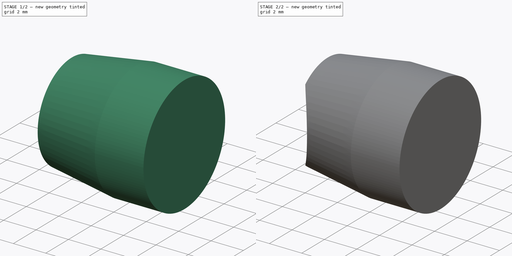
[diagram: build sequence overview — one tinted view per stage of 2, left to right]
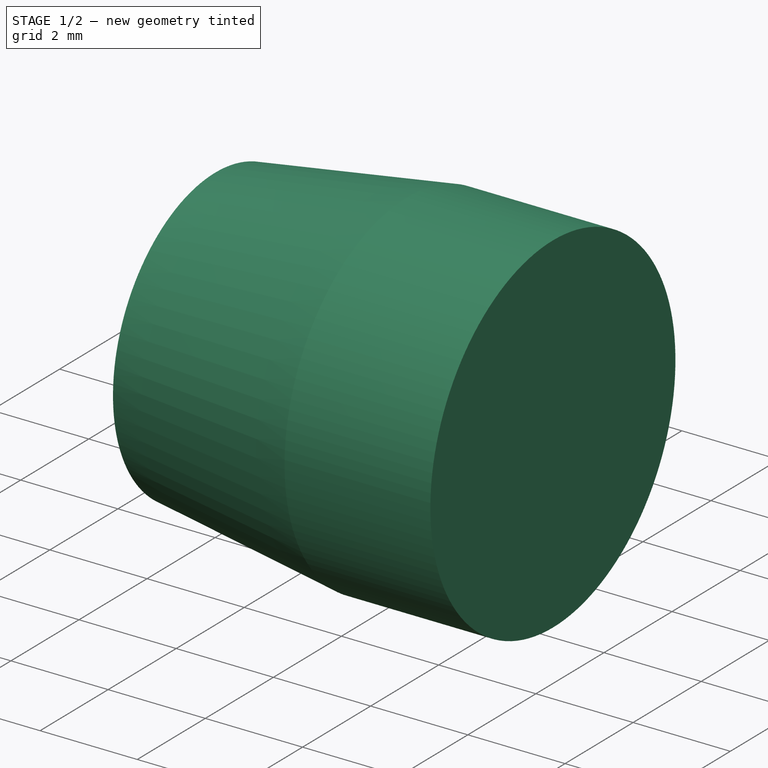
[diagram: stage 1 of 2 — iso view after this stage's code; geometry added in this stage tinted green]
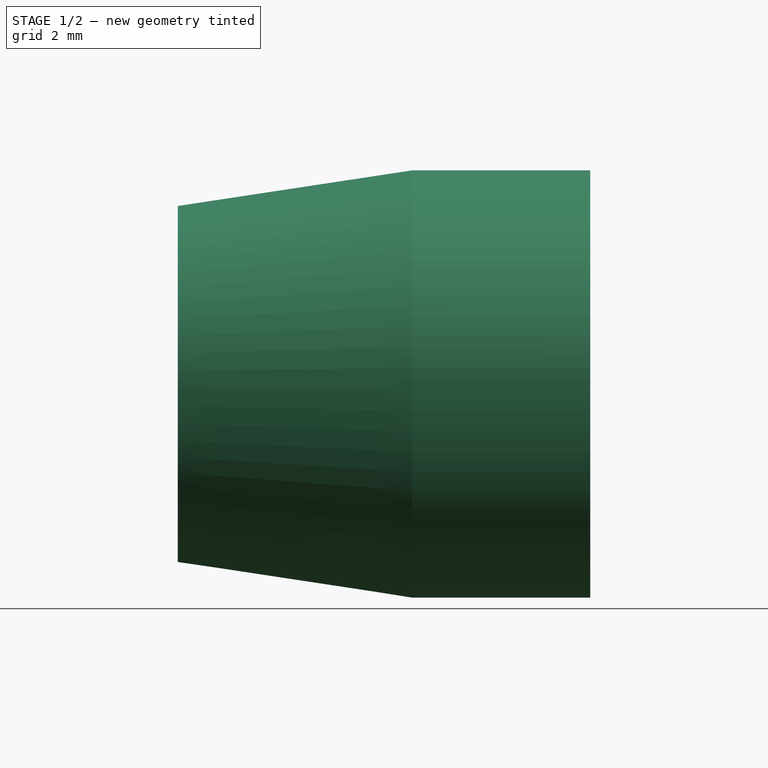
[diagram: stage 1 of 2 — front view after this stage's code; geometry added in this stage tinted green]
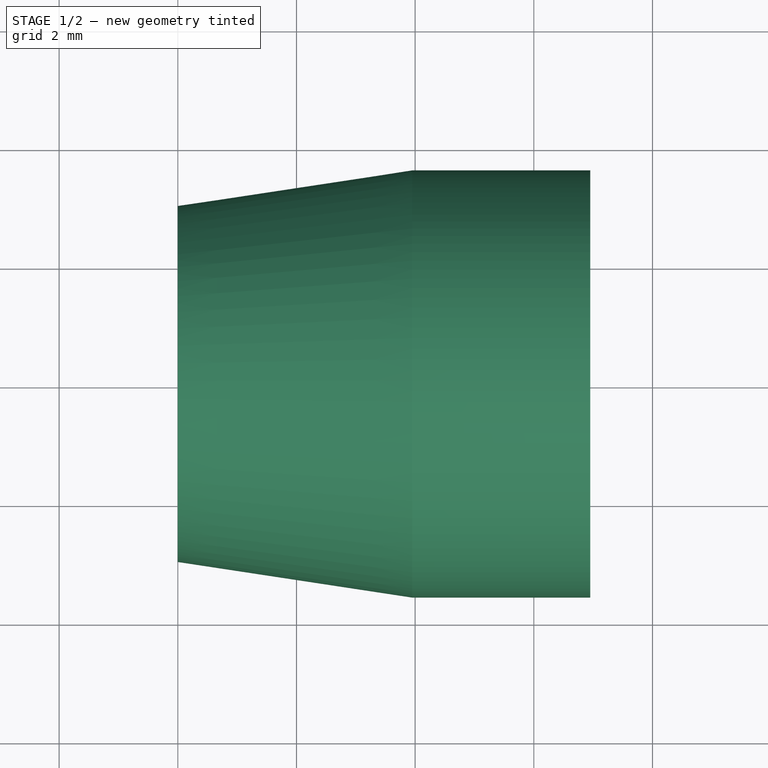
[diagram: stage 1 of 2 — top view after this stage's code; geometry added in this stage tinted green]
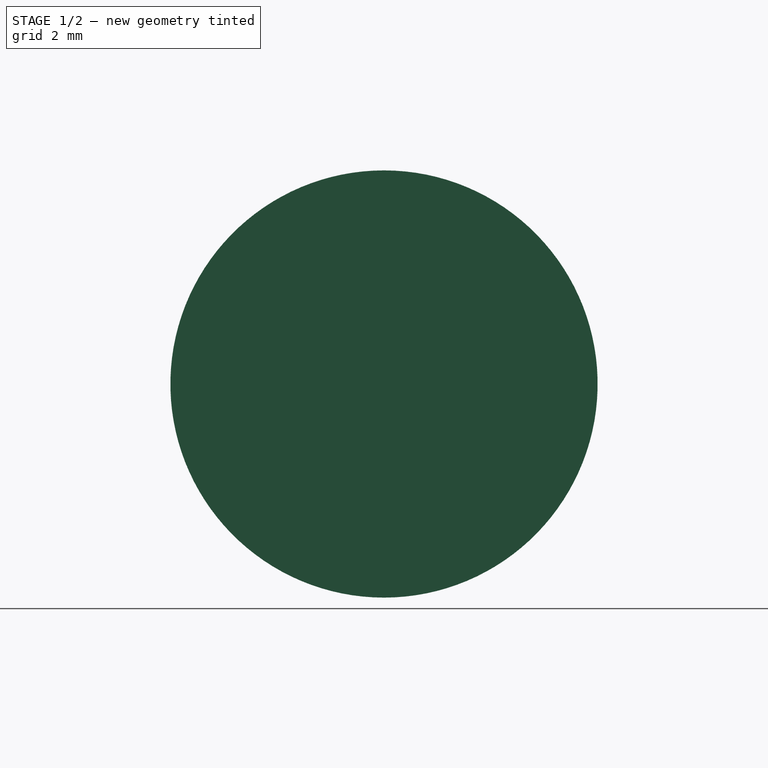
[diagram: stage 1 of 2 — right view after this stage's code; geometry added in this stage tinted green]
FCSTD DOCUMENT  (FreeCAD 0.19R24276 (Git))
Label: Art4BearingPlug
License: All rights reserved
LicenseURL: http://en.wikipedia.org/wiki/All_rights_reserved
objects: Sketcher::SketchObject×2, PartDesign::Revolution×1, PartDesign::Line×1, PartDesign::Groove×1, PartDesign::CoordinateSystem×1, PartDesign::Body×1
note: 9 computed .brp shape members not serialized (recipe doc carries the construction recipe); baked Part::Feature solids carry a one-line shape summary decoded from their .brp

FEATURE [Sketcher::SketchObject] Sketch
  FullyConstrained = true
  MapMode = 5
  Placement = pos=(0,0,0) rot=(1,0,0;1.5708rad)
  Support = -> [XZ_Plane]
  sketch-geometry (5):
    g0: LineSegment StartX=0 StartY=0 StartZ=0 EndX=0 EndY=3 EndZ=0
    g1: LineSegment StartX=0 StartY=3 StartZ=0 EndX=3.95 EndY=3.6 EndZ=0
    g2: LineSegment StartX=3.95 StartY=3.6 StartZ=0 EndX=6.95 EndY=3.6 EndZ=0
    g3: LineSegment StartX=6.95 StartY=3.6 StartZ=0 EndX=6.95 EndY=0 EndZ=0
    g4: LineSegment StartX=6.95 StartY=0 StartZ=0 EndX=0 EndY=0 EndZ=0
  constraints (14):
    c: Coincident(g-1,g0)
    c: PointOnObject(g0,g-2)
    c: Coincident(g0,g1)
    c: Coincident(g1,g2)
    c: Horizontal(g2)
    c: Coincident(g2,g3)
    c: Vertical(g3)
    c: Coincident(g3,g4)
    c: Horizontal(g4)
    c: Coincident(g4,g0)
    c: DistanceY(g0,g0) = 3
    c: DistanceX(g1,g1) = 3.95
    c: DistanceY(g3,g3) = 3.6
    c: DistanceX(g2,g2) = 3
FEATURE [PartDesign::Revolution] Revolution
  Angle = 360
  Axis = (1,0,0)
  Base = (0,0,0)
  Placement = pos=(0,0,0) rot=(1,0,0;1.5708rad)
  Profile = -> Sketch
  ReferenceAxis = -> Sketch [H_Axis]
  Refine = true
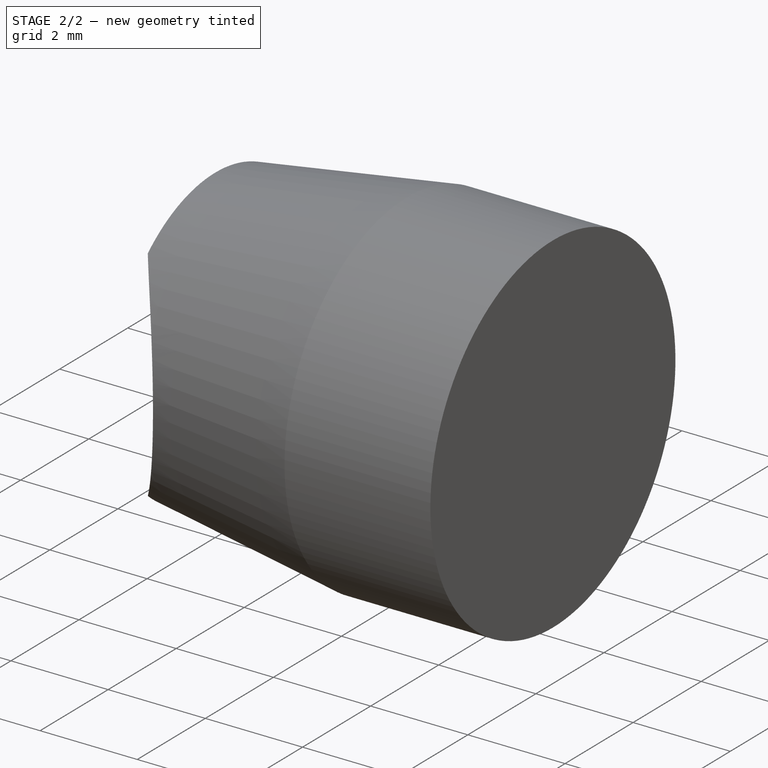
[diagram: stage 2 of 2 — iso view after this stage's code; geometry added in this stage tinted green]
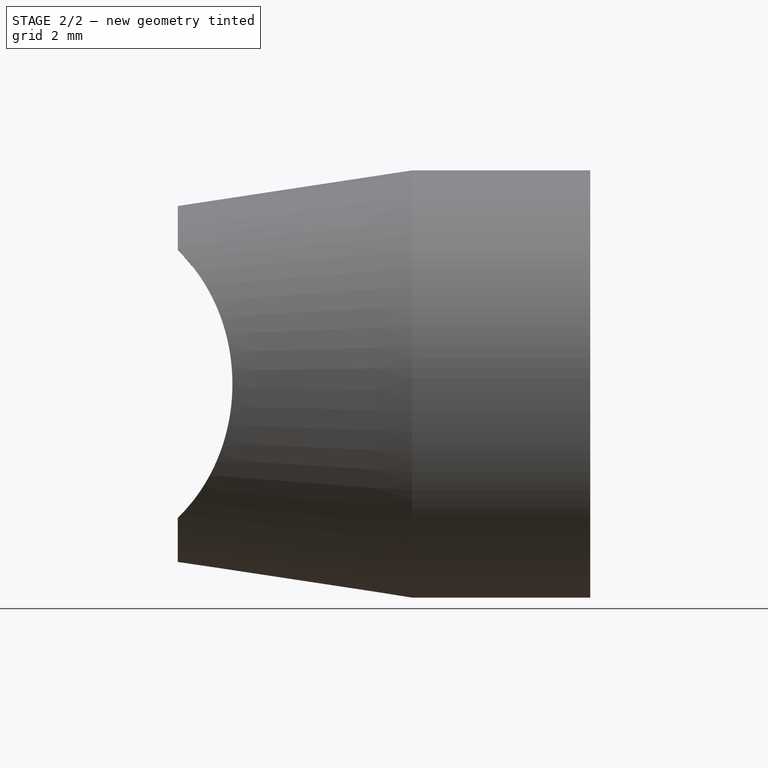
[diagram: stage 2 of 2 — front view after this stage's code; geometry added in this stage tinted green]
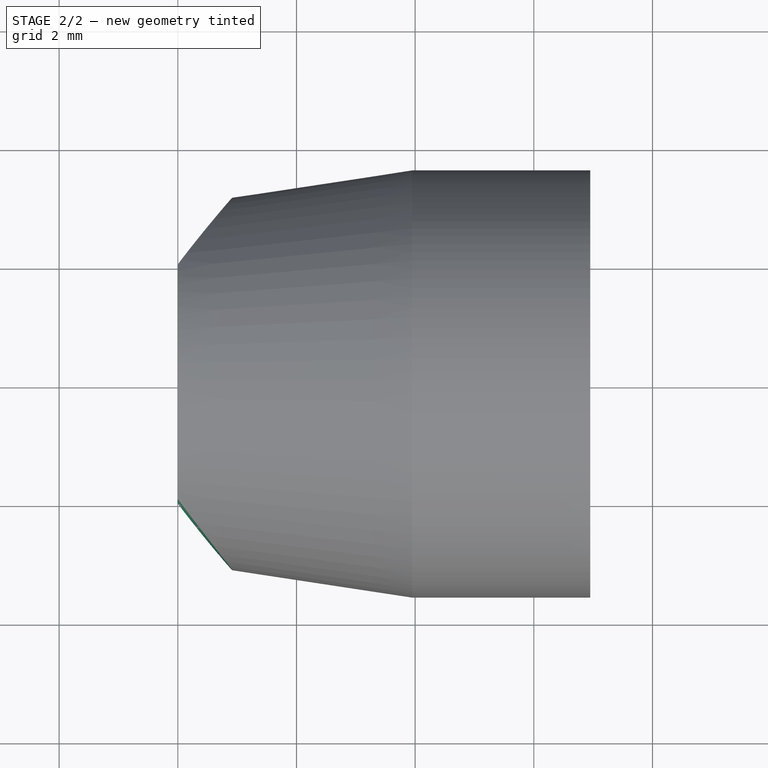
[diagram: stage 2 of 2 — top view after this stage's code; geometry added in this stage tinted green]
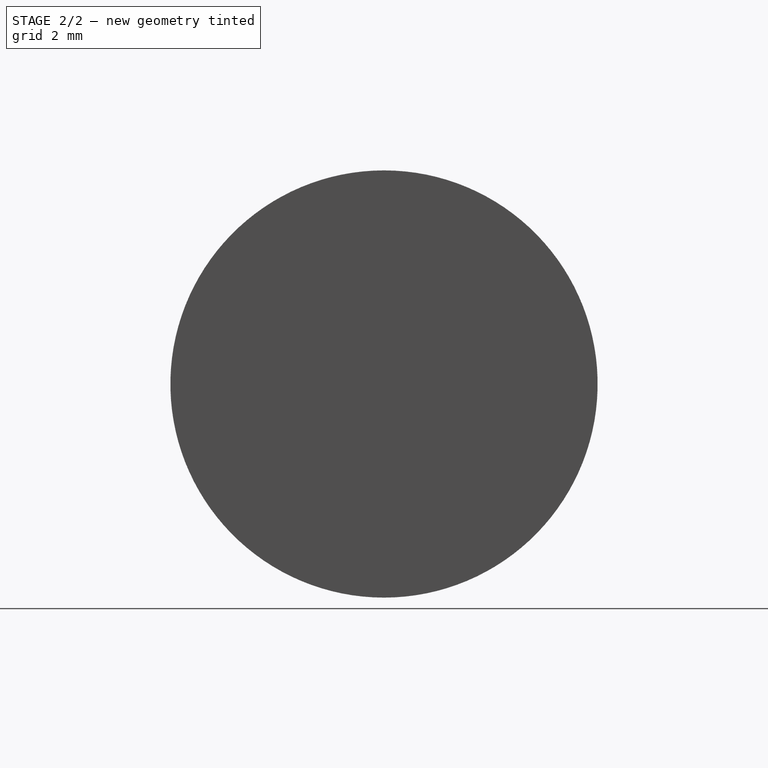
[diagram: stage 2 of 2 — right view after this stage's code; geometry added in this stage tinted green]
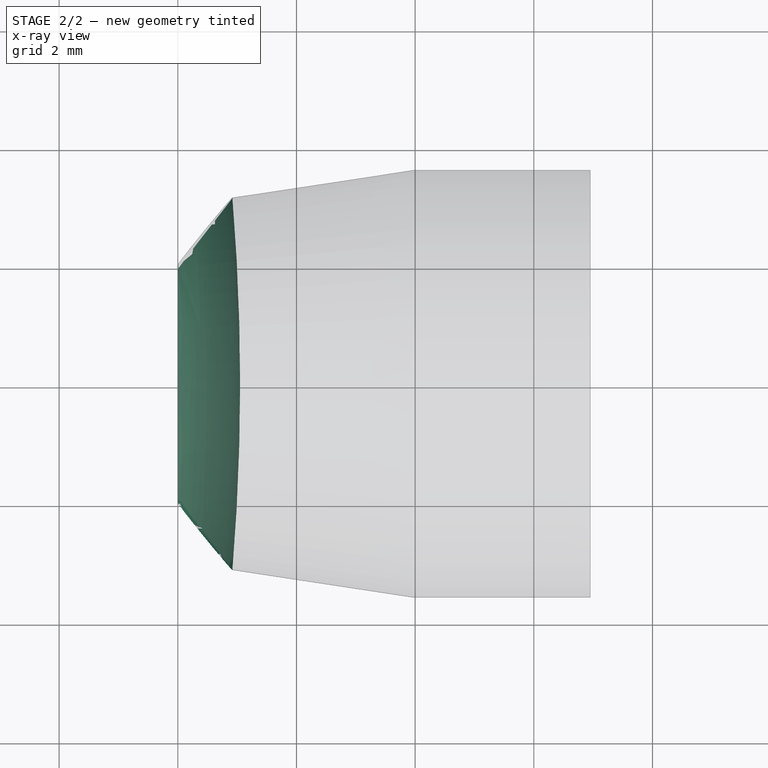
[diagram: stage 2 of 2 — x-ray composite at the top view; earlier geometry ghosted, this stage's added geometry solid]
FEATURE [Sketcher::SketchObject] Sketch001
  FullyConstrained = true
  MapMode = 5
  Placement = pos=(0,0,0) rot=(1,0,0;1.5708rad)
  Support = -> [XZ_Plane]
  sketch-geometry (1):
    g0: Circle CenterX=-2 CenterY=0 CenterZ=0 NormalX=0 NormalY=0 NormalZ=1 AngleXU=0 Radius=3.05
  constraints (3):
    c: PointOnObject(g0,g-1)
    c: Radius(g0) = 3.05
    c: DistanceX(g0,g-1) = 2
FEATURE [PartDesign::Line] DatumLine
  AttacherType = Attacher::AttachEngineLine
  AttachmentOffset = pos=(-37,0,0) rot=(0,0,1;0rad)
  Length = 20
  MapMode = 29
  Placement = pos=(-37,0,-1.23e-14) rot=(0,0,1;0rad)
  ResizeMode = 0
  Support = -> [Z_Axis]
FEATURE [PartDesign::Groove] Groove
  Angle = 360
  Axis = (-3e-16,3e-16,1)
  Base = (-37,0,-1.23e-14)
  BaseFeature = -> Revolution
  Placement = pos=(0,0,0) rot=(1,0,0;1.5708rad)
  Profile = -> Sketch001
  ReferenceAxis = -> DatumLine
  Refine = true
  Reversed = true
FEATURE [PartDesign::CoordinateSystem] LCS_Art4BearingPlug
  AttacherType = Attacher::AttachEngine3D
  MapMode = 11
  Placement = pos=(6.95,0,4e-16) rot=(0.57735,-0.57735,0.57735;4.18879rad)
  Support = -> [Groove]
FEATURE [PartDesign::Body] Body  label="Art4BearingPlug"
  Group = -> [Sketch,Revolution,Sketch001,DatumLine,Groove,LCS_Art4BearingPlug]
  Origin = -> Origin
  Tip = -> Groove
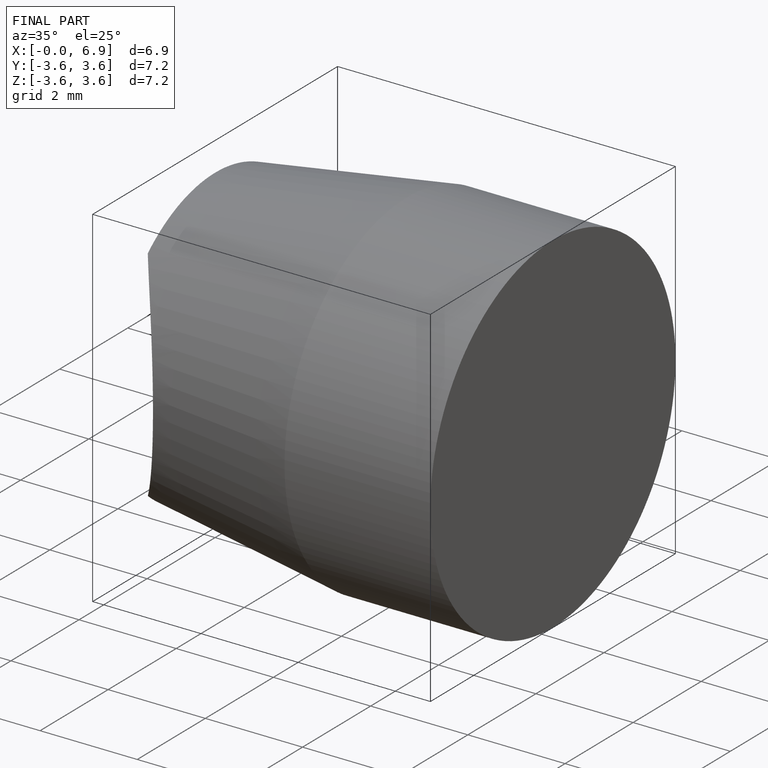
[diagram: finished part — iso view with bounding-box wireframe]
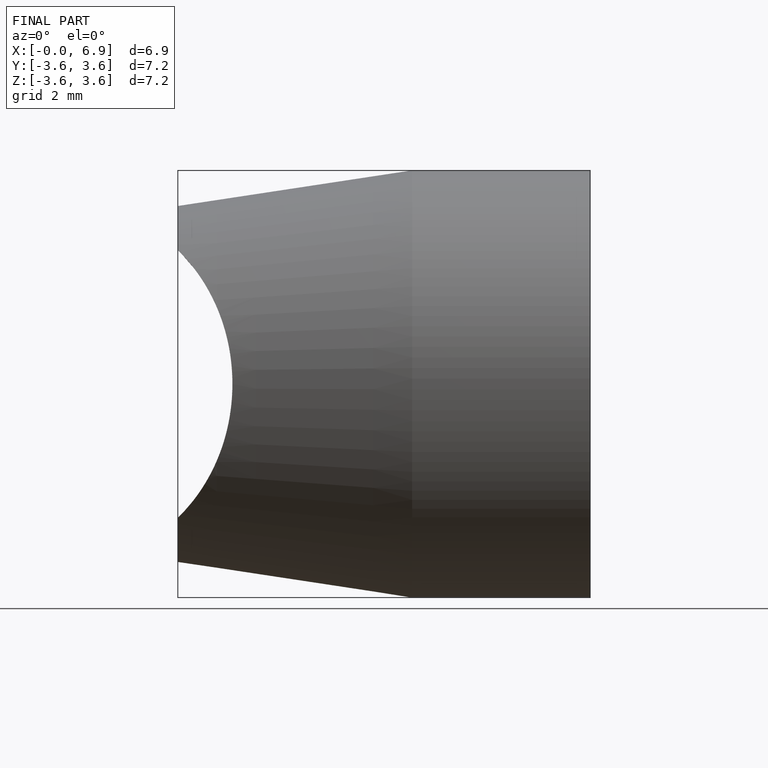
[diagram: finished part — front view with bounding-box wireframe]
